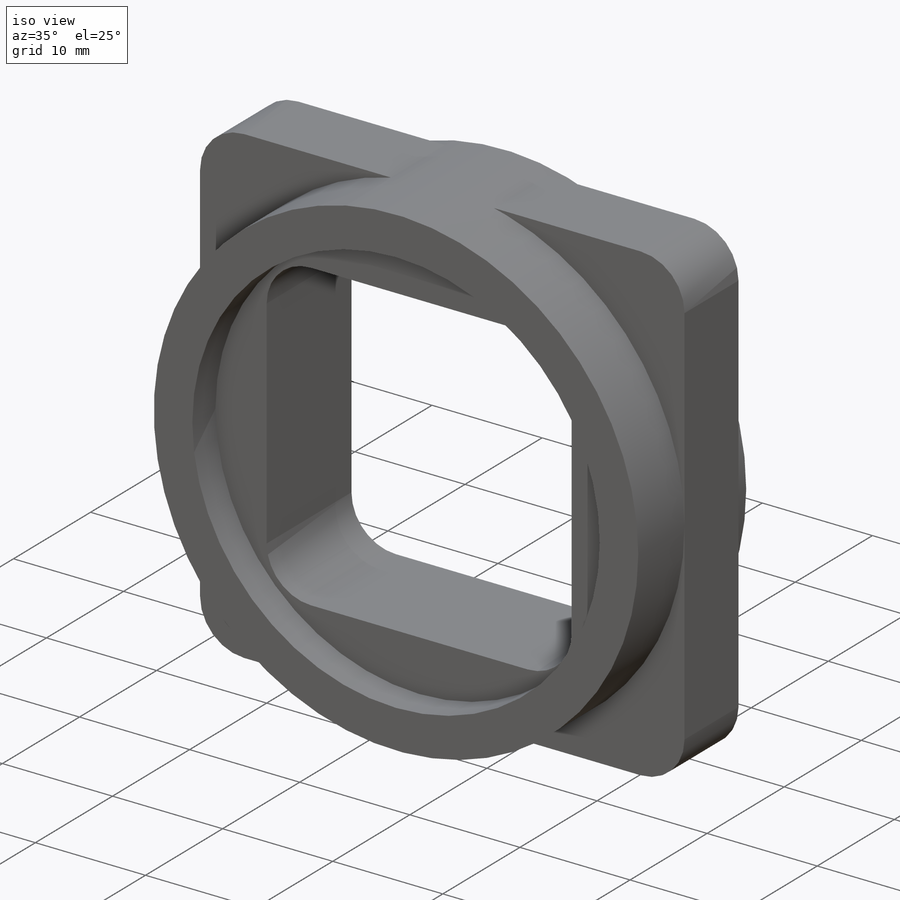
[diagram: iso view]
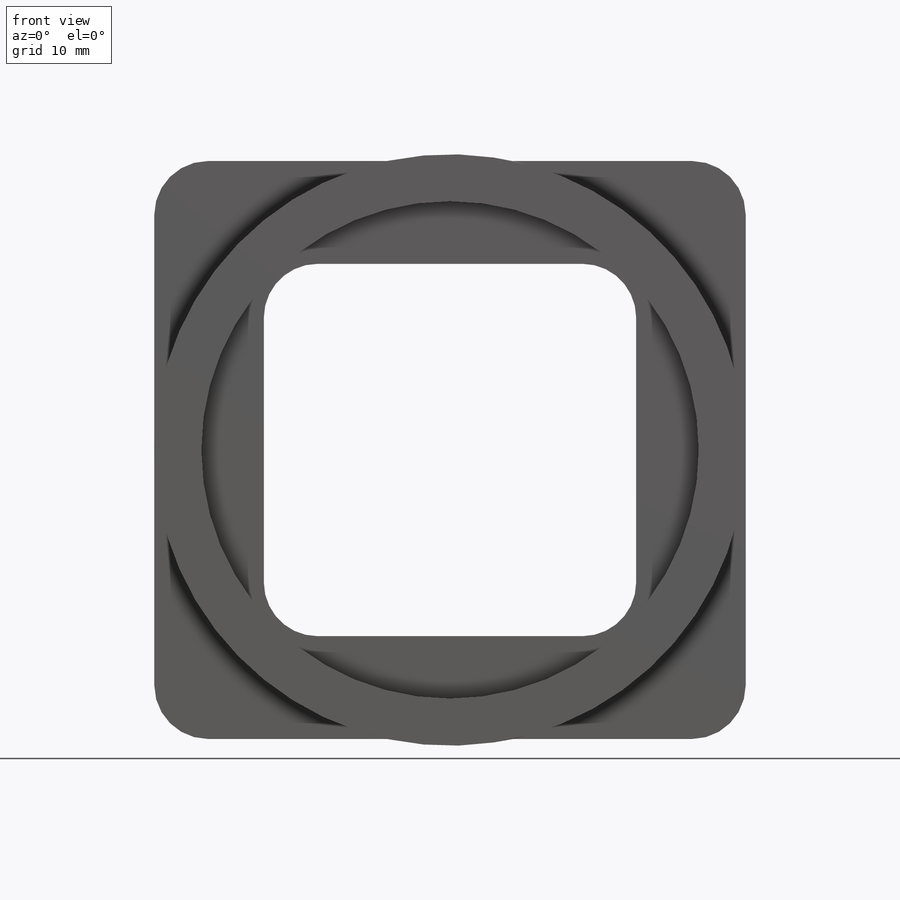
[diagram: front view]
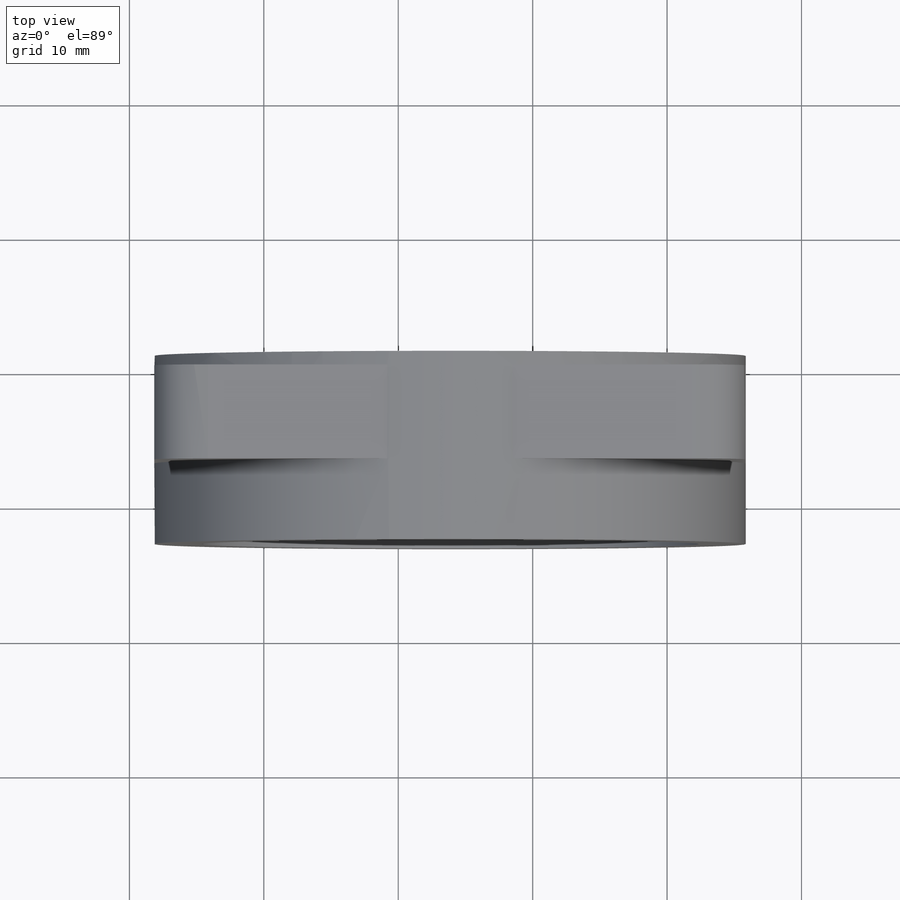
[diagram: top view]
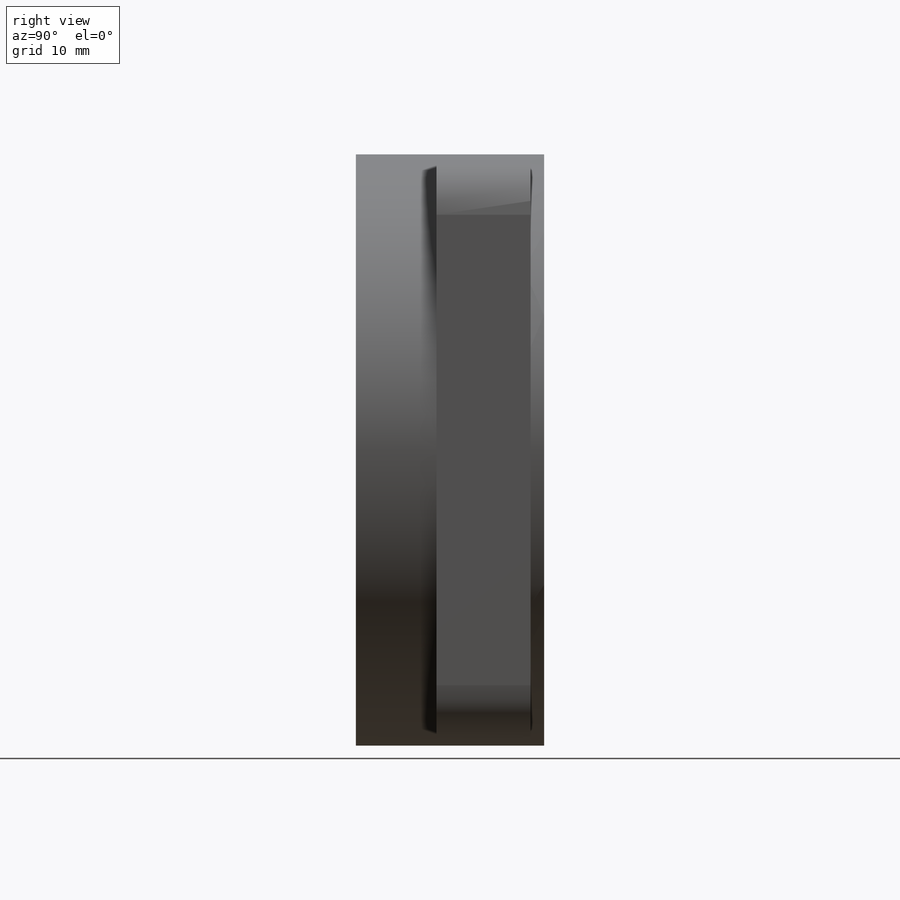
[diagram: right view]
SOLIDWORKS PART (.sldprt)
format: sldprt  version: not decoded by parser v0  size: 352,256 bytes
history: native  units: mm
features: sketch x7, extrude x5, cut_extrude x2, material x1, fillet x1 (+16 scaffold rows collapsed)
feature tree (32):
  scaffold x16  (default folders/planes/origin — collapsed)
  material  "Material <not specified>"
  sketch  "Sketch1"  dims[D1=27.7mm D2=27.7mm D3=40.9mm D4=20.45mm D5=37.5mm D6=4.9mm D7=~20.555119mm]
  extrude  "Boss-Extrude1"  Depth=6mm
  sketch  "Sketch4"  dims[c1.D1=~11.808943mm c1.D2=~4.623124mm c1.D3=3.0mm c1.D4=37.9mm c1.D5=~45.013399mm c1.D6=~2.419372mm c2.D3=3.0mm]
  cut_extrude  "Cut-Extrude1"  Depth=46mm
  sketch  "Sketch5"  dims[D1=43.0mm D2=44.0mm]
  extrude  "Boss-Extrude2"  Depth=1mm
  sketch  "Sketch6"  dims[D1=4.0mm]
  cut_extrude  "Cut-Extrude2"  Depth=1mm
  sketch  "Sketch7"  dims[c1.D2=~3.066926mm c1.D3=~40.933074mm c2.D2=~3.066926mm c2.D1=1.1mm]
  extrude  "Boss-Extrude3"  Depth=6mm
  fillet  "Fillet1"  Radius=4mm
  sketch  "Sketch8"  dims[D1=44.0mm]
  extrude  "Boss-Extrude4"  Depth=3mm
  sketch  "Sketch9"  dims[D1=37.0mm D2=44.0mm]
  extrude  "Boss-Extrude5"  Depth=3mm
decode coverage: 15 of 15 modeling features carry decoded parameters
note: ~ marks probable driven/reference dimensions
note: suppression state not decoded; provenance and decode notes live in map.json
